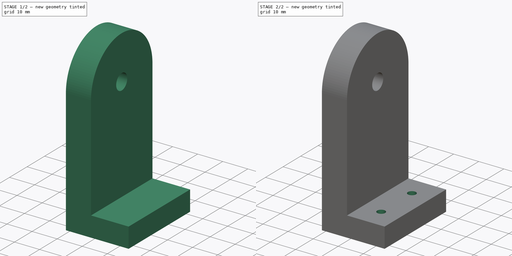
[diagram: build sequence overview — one tinted view per stage of 2, left to right]
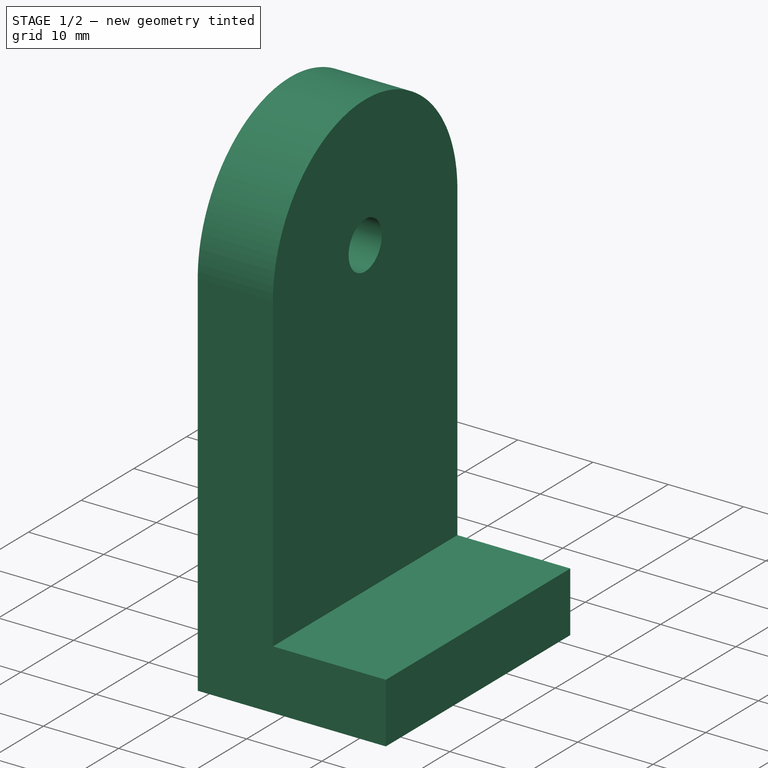
[diagram: stage 1 of 2 — iso view after this stage's code; geometry added in this stage tinted green]
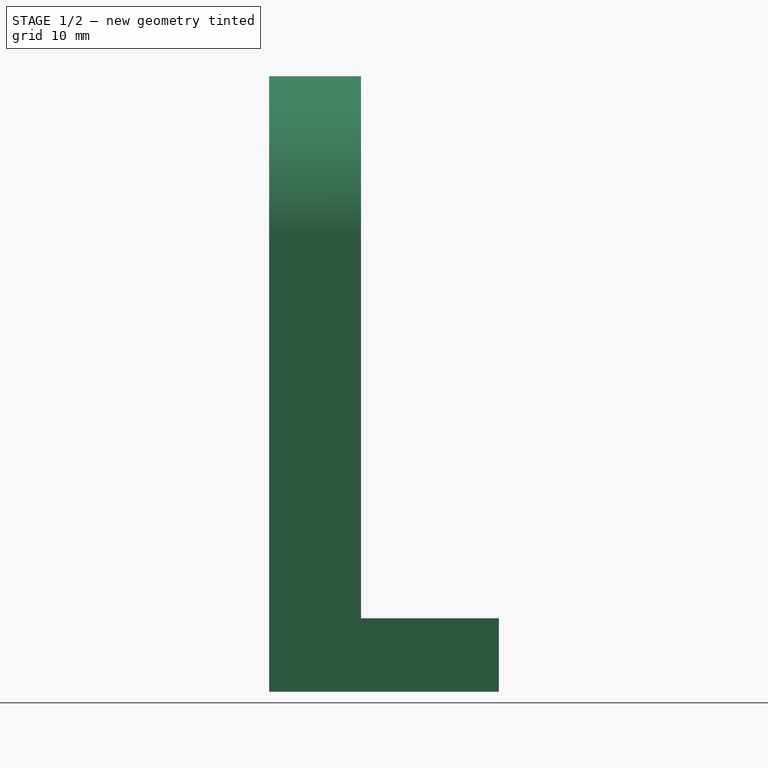
[diagram: stage 1 of 2 — front view after this stage's code; geometry added in this stage tinted green]
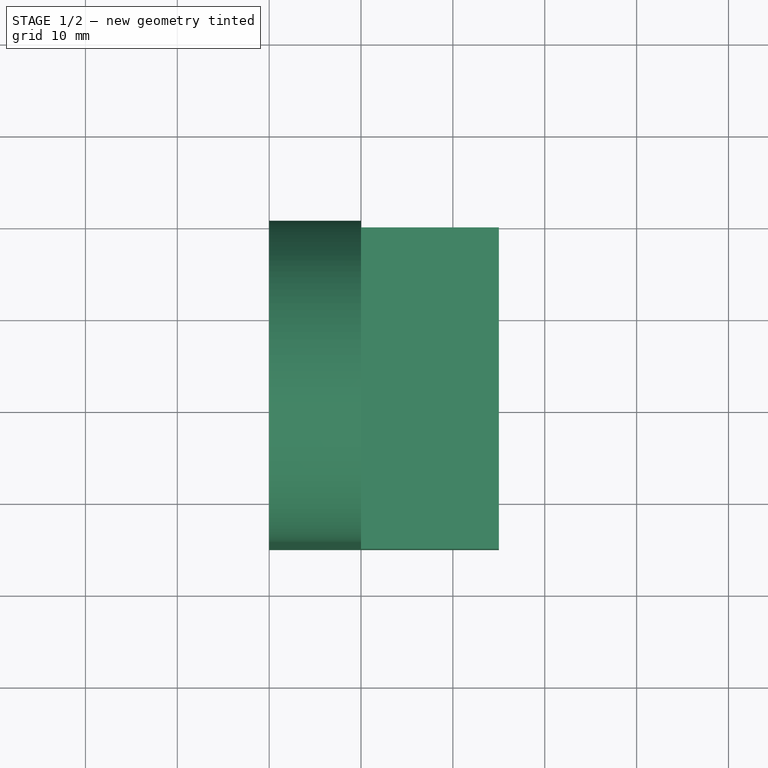
[diagram: stage 1 of 2 — top view after this stage's code; geometry added in this stage tinted green]
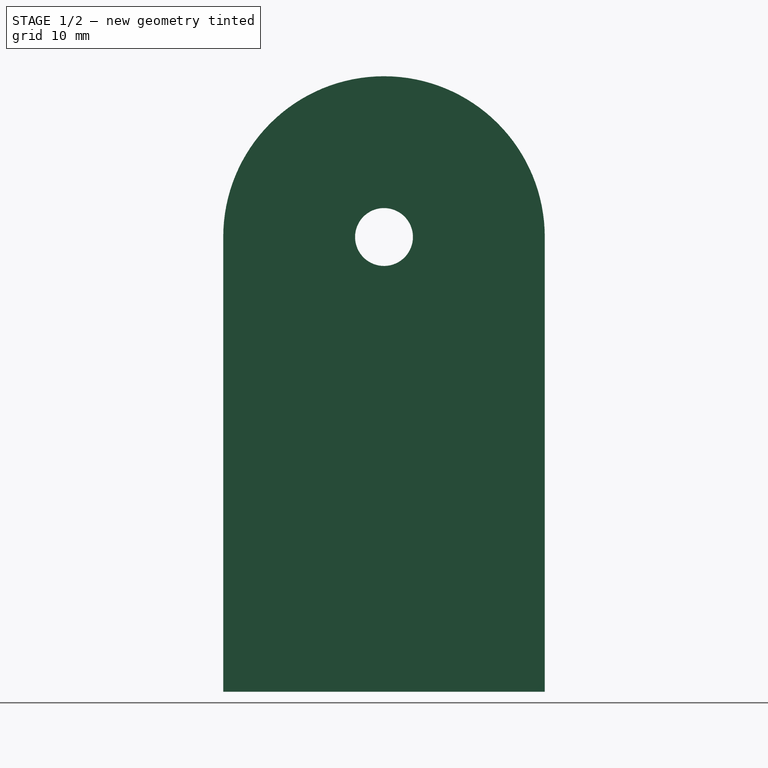
[diagram: stage 1 of 2 — right view after this stage's code; geometry added in this stage tinted green]
FCSTD DOCUMENT  (FreeCAD 0.21R33771 (Git))
Label: head_inner_side_bracket
License: All rights reserved
LicenseURL: http://en.wikipedia.org/wiki/All_rights_reserved
objects: Sketcher::SketchObject×3, PartDesign::Pad×1, PartDesign::Pocket×1, PartDesign::Hole×1, PartDesign::Body×1
note: 10 computed .brp shape members not serialized (recipe doc carries the construction recipe); baked Part::Feature solids carry a one-line shape summary decoded from their .brp

FEATURE [Sketcher::SketchObject] Sketch  label="sketch_base"
  FullyConstrained = true
  MapMode = 5
  Placement = pos=(0,0,0) rot=(1,0,0;1.5708rad)
  Support = -> [XZ_Plane]
  sketch-geometry (6):
    g0: LineSegment StartX=0 StartY=0 StartZ=0 EndX=0 EndY=67 EndZ=0
    g1: LineSegment StartX=0 StartY=67 StartZ=0 EndX=10 EndY=67 EndZ=0
    g2: LineSegment StartX=10 StartY=67 StartZ=0 EndX=10 EndY=8 EndZ=0
    g3: LineSegment StartX=10 StartY=8 StartZ=0 EndX=25 EndY=8 EndZ=0
    g4: LineSegment StartX=25 StartY=8 StartZ=0 EndX=25 EndY=0 EndZ=0
    g5: LineSegment StartX=25 StartY=0 StartZ=0 EndX=0 EndY=0 EndZ=0
  constraints (19):
    c: PointOnObject(g0,g-2)
    c: Coincident(g0,g1)
    c: Horizontal(g1)
    c: Coincident(g1,g2)
    c: Vertical(g2)
    c: Coincident(g2,g3)
    c: Horizontal(g3)
    c: Coincident(g3,g4)
    c: Vertical(g4)
    c: Coincident(g4,g5)
    c: Horizontal(g5)
    c: DistanceY(g-1,g0) = 67  'height'
    c: DistanceY(g4,g4) = 8
    c: DistanceX(g1,g1) = 10
    c: DistanceX(g3,g3) = 15  'wedge_width'
    c: DistanceX(g-1,g5) = 25  'width'
    c: DistanceY(g2,g2) = 59
    c: Coincident(g0,g-1)
    c: Coincident(g5,g0)
FEATURE [PartDesign::Pad] Pad  label="pad_base"
  Direction = (0,-1,-2e-16)
  Length = 35
  Length2 = 10
  Placement = pos=(0,0,0) rot=(1,0,0;1.5708rad)
  Profile = -> Sketch
  ReferenceAxis = -> Sketch [N_Axis]
  Refine = true
  Type = 0
FEATURE [Sketcher::SketchObject] Sketch001  label="sketch_bracket_hole"
  FullyConstrained = true
  MapMode = 5
  Placement = pos=(0,0,0) rot=(0.57735,0.57735,0.57735;2.0944rad)
  Support = -> [YZ_Plane]
  expr: Constraints[1] = Sketch.Constraints.height
  expr: Constraints[2] = <<pad_base>>.Length / 2
  sketch-geometry (14):
    g0: GeomPoint X=0 Y=67 Z=0
    g1: GeomPoint X=-17.5 Y=49.5 Z=0
    g2: LineSegment StartX=0 StartY=67 StartZ=0 EndX=-17.5 EndY=67 EndZ=0
    g3: LineSegment StartX=-17.5 StartY=67 StartZ=0 EndX=-17.5 EndY=49.5 EndZ=0
    g4: Circle CenterX=-17.5 CenterY=49.5 CenterZ=0 NormalX=0 NormalY=0 NormalZ=1 AngleXU=0 Radius=3.15
    g5: LineSegment StartX=0 StartY=67 StartZ=0 EndX=0 EndY=0 EndZ=0
    g6: LineSegment StartX=-17.5 StartY=49.5 StartZ=0 EndX=0 EndY=49.5 EndZ=0
    g7: LineSegment StartX=-17.5 StartY=49.5 StartZ=0 EndX=-35 EndY=49.5 EndZ=0
    g8: ArcOfCircle CenterX=-17.5 CenterY=49.5 CenterZ=0 NormalX=0 NormalY=0 NormalZ=1 AngleXU=0 Radius=17.5 StartAngle=0 EndAngle=3.14159
    g9: LineSegment StartX=-35 StartY=49.5 StartZ=0 EndX=-45 EndY=49.5 EndZ=0
    g10: LineSegment StartX=-45 StartY=49.5 StartZ=0 EndX=-45 EndY=74.5 EndZ=0
    g11: LineSegment StartX=-45 StartY=74.5 StartZ=0 EndX=10 EndY=74.5 EndZ=0
    g12: LineSegment StartX=10 StartY=74.5 StartZ=0 EndX=10 EndY=49.5 EndZ=0
    g13: LineSegment StartX=10 StartY=49.5 StartZ=0 EndX=0 EndY=49.5 EndZ=0
  constraints (35):
    c: PointOnObject(g0,g-2)
    c: DistanceY(g-1,g0) = 67
    c: DistanceX(g1,g-1) = 17.5
    c: Coincident(g2,g0)
    c: Horizontal(g2)
    c: Coincident(g3,g2)
    c: Coincident(g3,g1)
    c: Vertical(g3)
    c: Equal(g2,g3)
    c: Coincident(g4,g1)
    c: Diameter(g4) = 6.3
    c: Coincident(g5,g0)
    c: Coincident(g5,g-1)
    c: Coincident(g6,g4)
    c: PointOnObject(g6,g5)
    c: Horizontal(g6)
    c: Coincident(g7,g4)
    c: Horizontal(g7)
    c: Coincident(g8,g4)
    c: Coincident(g8,g7)
    c: Coincident(g8,g6)
    c: Coincident(g9,g8)
    c: Horizontal(g9)
    c: Coincident(g9,g10)
    c: Vertical(g10)
    c: Coincident(g10,g11)
    c: Horizontal(g11)
    c: Coincident(g11,g12)
    c: Vertical(g12)
    c: Coincident(g12,g13)
    c: Coincident(g13,g8)
    c: Horizontal(g13)
    c: Equal(g9,g13)
    c: DistanceX(g9,g9) = 10
    c: DistanceY(g10,g10) = 25
FEATURE [PartDesign::Pocket] Pocket  label="pocket_bracket_hole"
  BaseFeature = -> Pad
  Direction = (-1,2e-16,-3e-16)
  Length = 5
  Length2 = 5
  Placement = pos=(0,0,0) rot=(1,0,0;1.5708rad)
  Profile = -> Sketch001
  ReferenceAxis = -> Sketch001 [N_Axis]
  Refine = true
  Reversed = true
  Type = 2
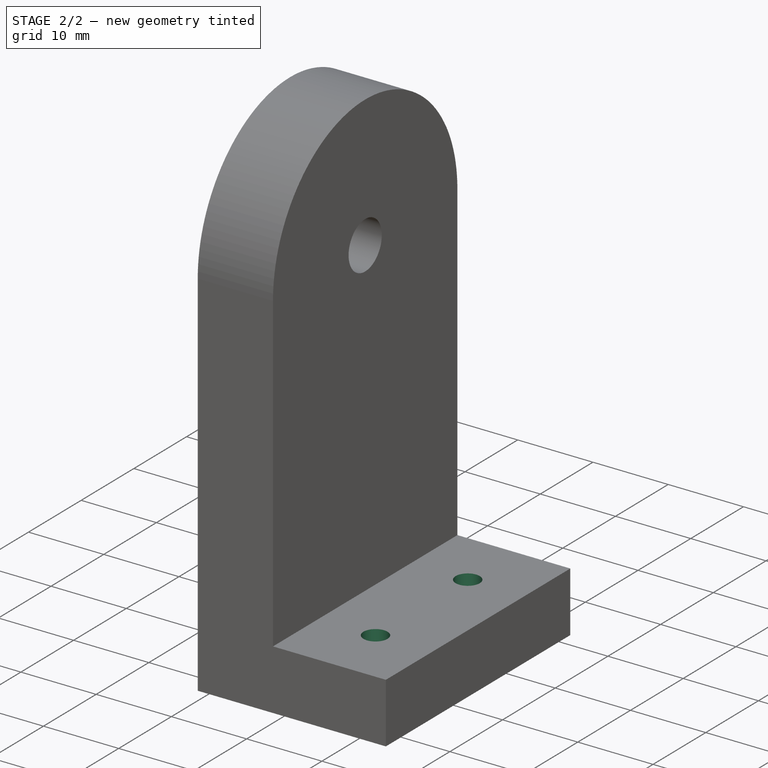
[diagram: stage 2 of 2 — iso view after this stage's code; geometry added in this stage tinted green]
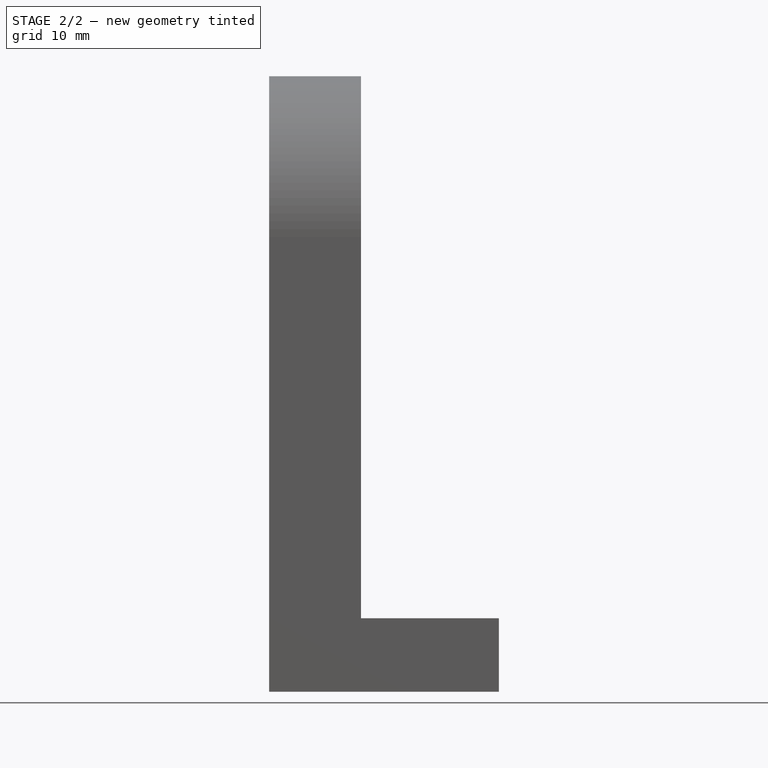
[diagram: stage 2 of 2 — front view after this stage's code; geometry added in this stage tinted green]
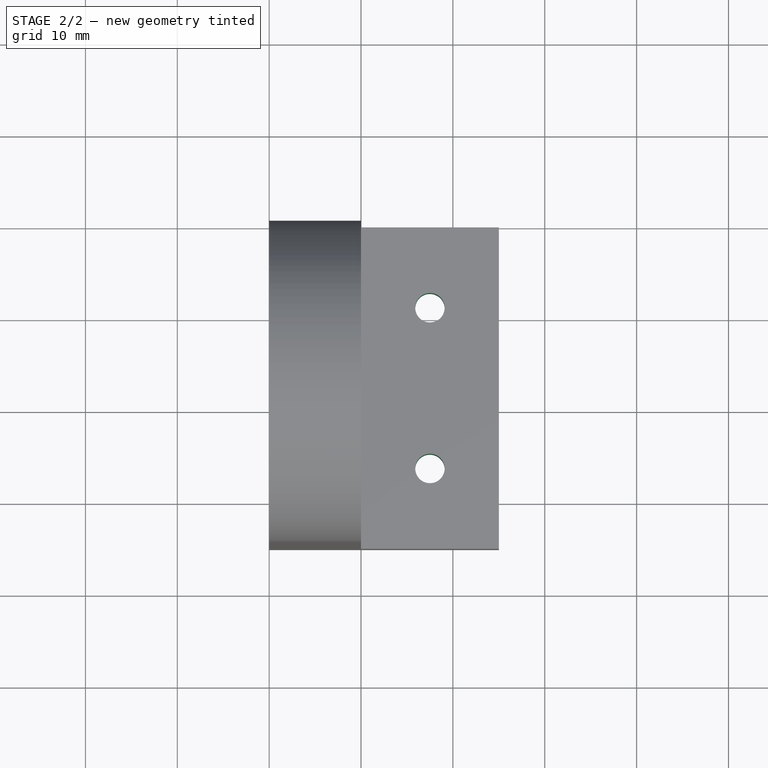
[diagram: stage 2 of 2 — top view after this stage's code; geometry added in this stage tinted green]
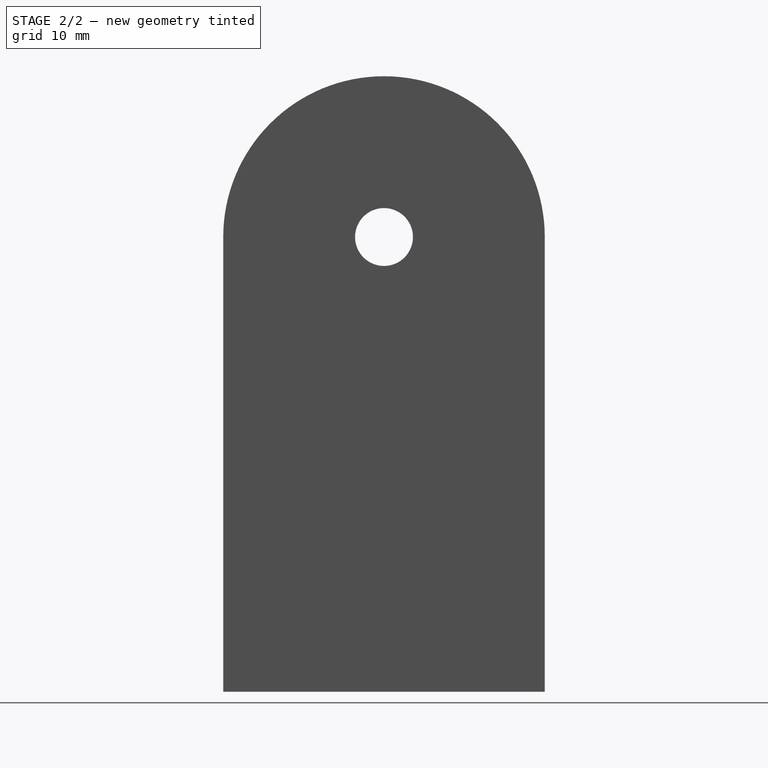
[diagram: stage 2 of 2 — right view after this stage's code; geometry added in this stage tinted green]
FEATURE [Sketcher::SketchObject] Sketch002  label="sketch_wood_holes"
  FullyConstrained = true
  MapMode = 5
  Support = -> [XY_Plane]
  expr: Constraints[1] = Sketch.Constraints.width
  expr: Constraints[3] = Sketch.Constraints.wedge_width
  expr: Constraints[6] = Pad.Length
  sketch-geometry (12):
    g0: GeomPoint X=25 Y=0 Z=0
    g1: GeomPoint X=10 Y=0 Z=0
    g2: LineSegment StartX=25 StartY=0 StartZ=0 EndX=25 EndY=-35 EndZ=0
    g3: LineSegment StartX=10 StartY=0 StartZ=0 EndX=10 EndY=-35 EndZ=0
    g4: LineSegment StartX=25 StartY=-35 StartZ=0 EndX=10 EndY=-35 EndZ=0
    g5: GeomPoint X=17.5 Y=0 Z=0
    g6: LineSegment StartX=17.5 StartY=0 StartZ=0 EndX=17.5 EndY=-8.75 EndZ=0
    g7: LineSegment StartX=17.5 StartY=-8.75 StartZ=0 EndX=17.5 EndY=-17.5 EndZ=0
    g8: LineSegment StartX=17.5 StartY=-17.5 StartZ=0 EndX=17.5 EndY=-26.25 EndZ=0
    g9: LineSegment StartX=17.5 StartY=-26.25 StartZ=0 EndX=17.5 EndY=-35 EndZ=0
    g10: Circle CenterX=17.5 CenterY=-8.75 CenterZ=0 NormalX=0 NormalY=0 NormalZ=1 AngleXU=0 Radius=1.5
    g11: Circle CenterX=17.5 CenterY=-26.25 CenterZ=0 NormalX=0 NormalY=0 NormalZ=1 AngleXU=0 Radius=1.5
  constraints (29):
    c: PointOnObject(g0,g-1)
    c: DistanceX(g-1,g0) = 25
    c: PointOnObject(g1,g-1)
    c: DistanceX(g1,g0) = 15
    c: Coincident(g2,g0)
    c: Vertical(g2)
    c: DistanceY(g2,g2) = 35
    c: Coincident(g3,g1)
    c: Vertical(g3)
    c: Coincident(g4,g2)
    c: Coincident(g4,g3)
    c: Horizontal(g4)
    c: Symmetric(g1,g0,g5)
    c: Coincident(g6,g5)
    c: PointOnObject(g9,g4)
    c: Coincident(g6,g7)
    c: Vertical(g6)
    c: Vertical(g7)
    c: Coincident(g8,g9)
    c: Vertical(g8)
    c: Vertical(g9)
    c: Equal(g6,g7)
    c: Equal(g7,g8)
    c: Equal(g8,g9)
    c: Coincident(g10,g6)
    c: Coincident(g11,g8)
    c: Diameter(g10) = 3
    c: Coincident(g7,g8)
    c: Equal(g11,g10)
FEATURE [PartDesign::Hole] Hole  label="hole_wedge"
  BaseFeature = -> Pocket
  CustomThreadClearance = 0
  Depth = 157.443
  DepthType = 1
  Diameter = 3.2
  DrillForDepth = false
  DrillPoint = 1
  DrillPointAngle = 118
  HoleCutCountersinkAngle = 90
  HoleCutCustomValues = false
  HoleCutDepth = 0
  HoleCutDiameter = 6.1
  HoleCutType = 2
  ModelThread = false
  Placement = pos=(0,0,0) rot=(1,0,0;1.5708rad)
  Profile = -> Sketch002
  Refine = true
  Reversed = true
  Tapered = false
  TaperedAngle = 90
  ThreadClass = 0
  ThreadDepth = 157.443
  ThreadDepthType = 0
  ThreadDirection = 0
  ThreadFit = 1
  ThreadSize = 9
  ThreadType = 1
  Threaded = false
  UseCustomThreadClearance = false
FEATURE [PartDesign::Body] Body
  Group = -> [Sketch,Pad,Sketch001,Pocket,Sketch002,Hole]
  Origin = -> Origin
  Tip = -> Hole
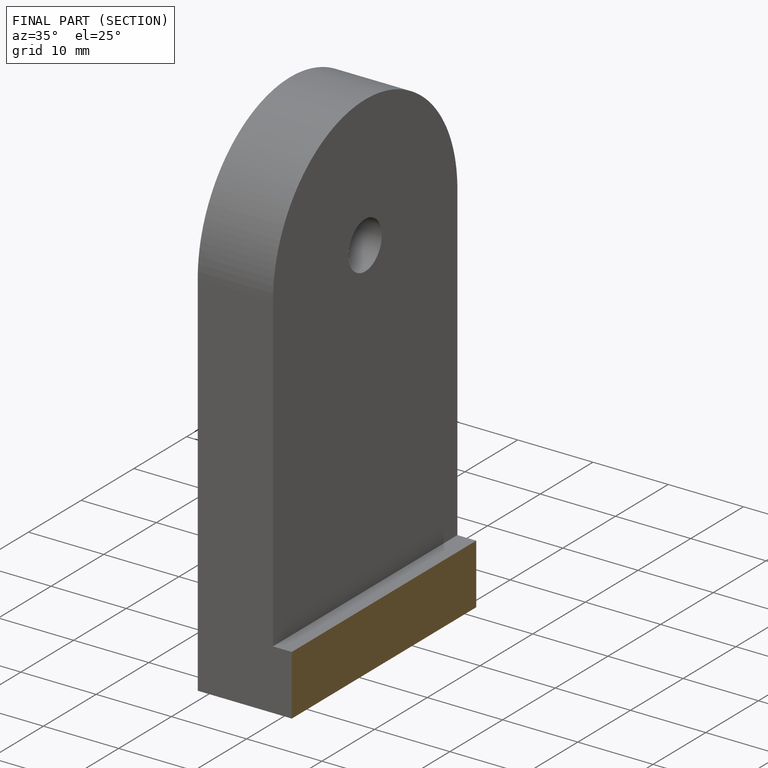
[diagram: finished part — half-section view (interior)]
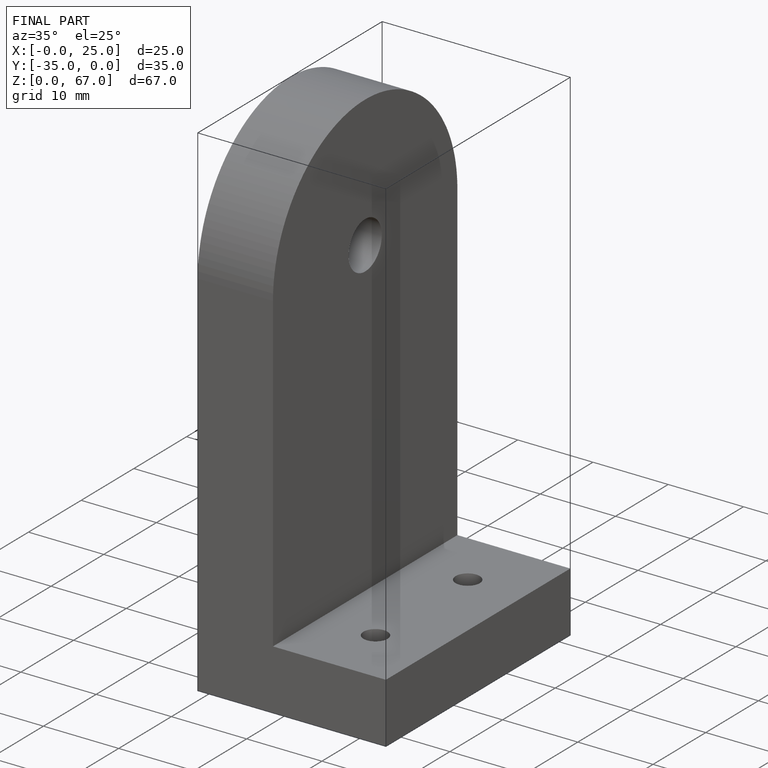
[diagram: finished part — iso view with bounding-box wireframe]
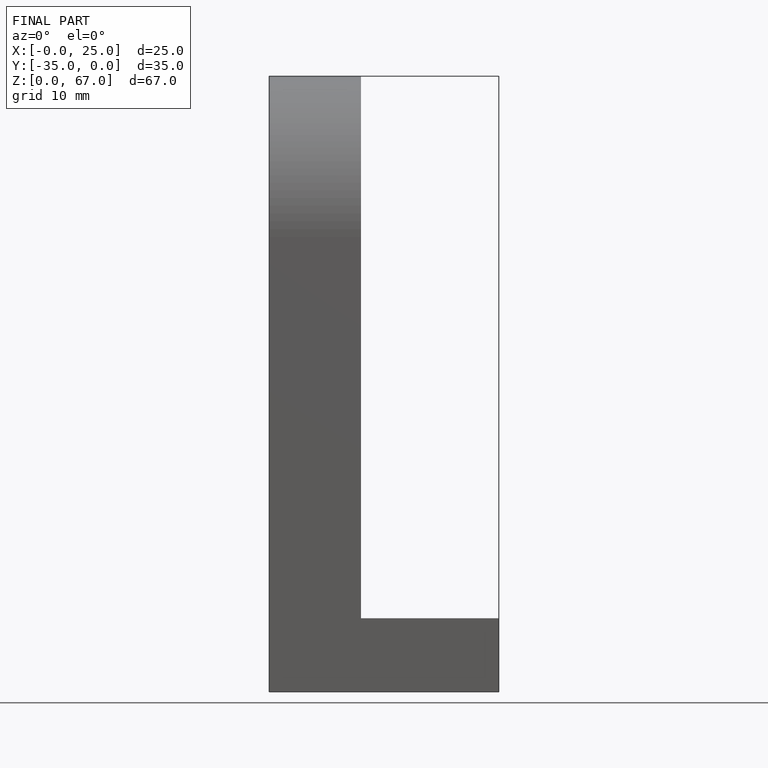
[diagram: finished part — front view with bounding-box wireframe]
